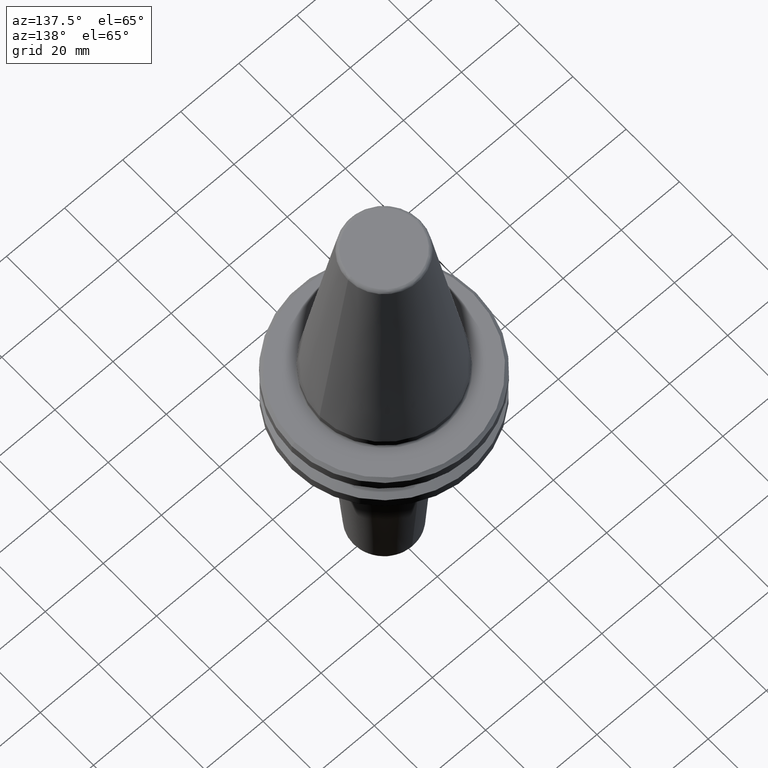
[diagram: clean part render]
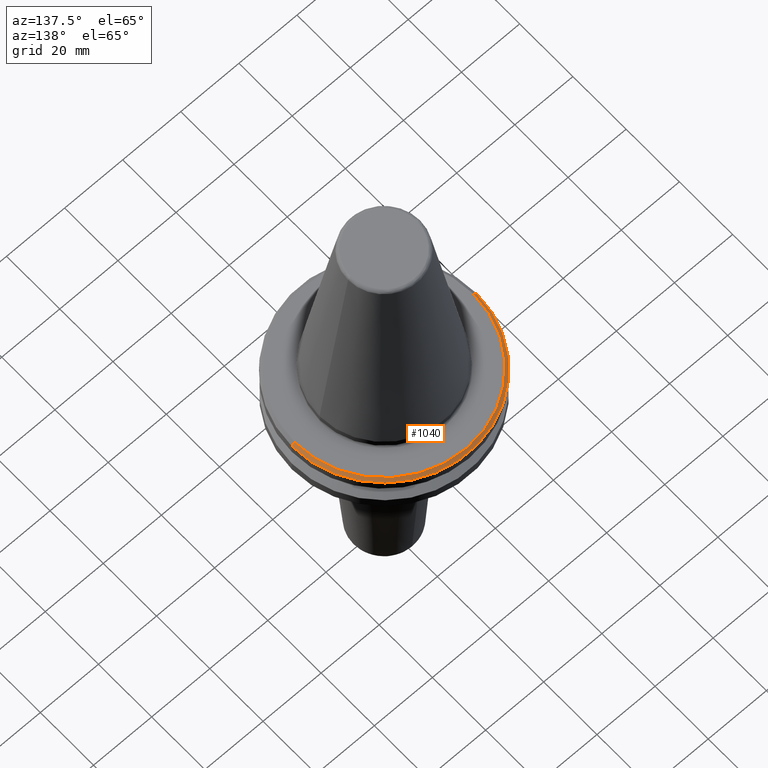
[diagram: same view with one face highlighted and labeled with its STEP entity id]
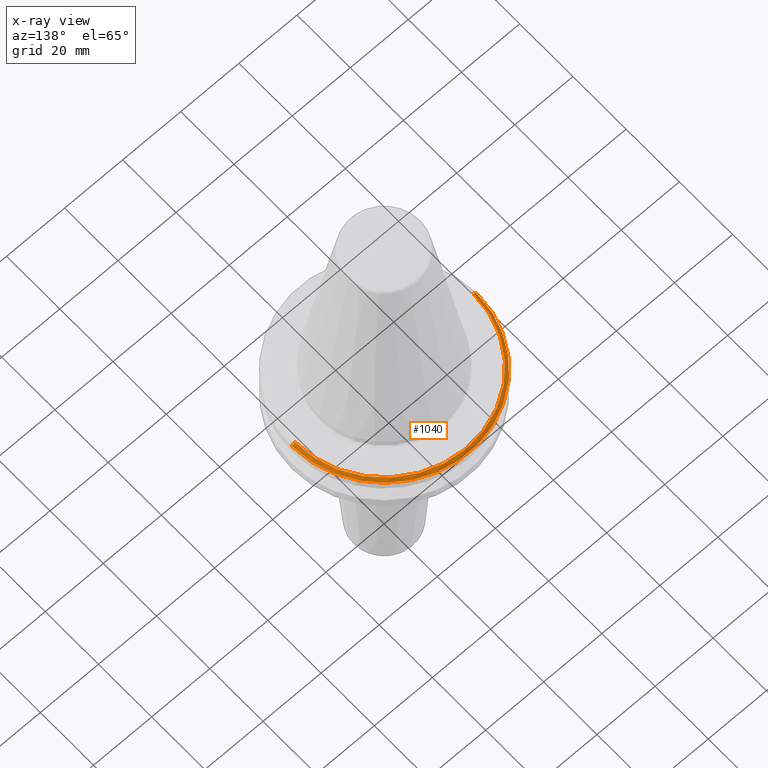
[diagram: x-ray of the same camera — body ghosted, the highlighted face saturated]
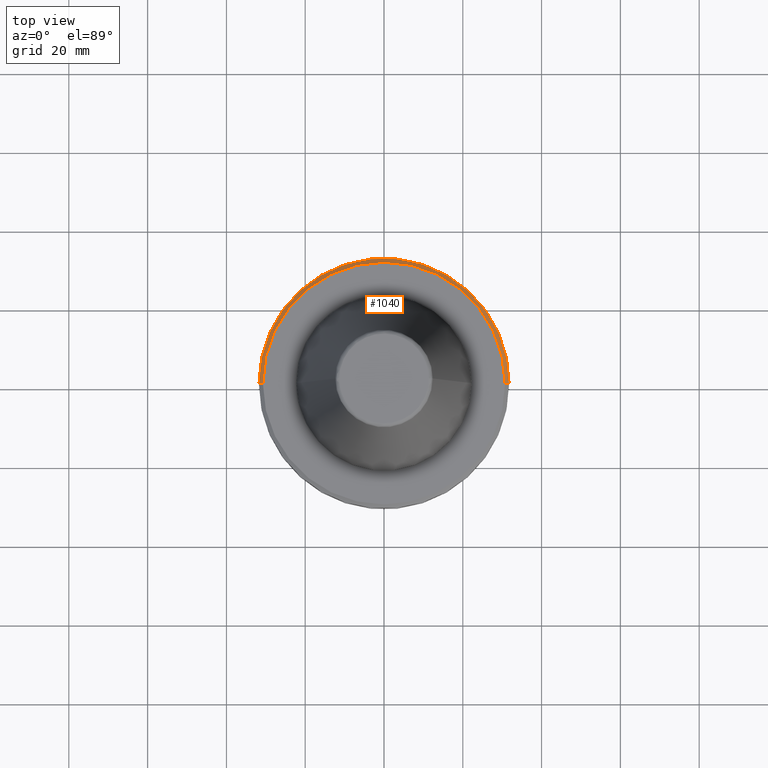
[diagram: same view with one face highlighted and labeled with its STEP entity id]
A machine part, auxiliary view. The second image highlights one B-rep face of the part: STEP entity #1040.
The next image is the same camera in x-ray: the body ghosted, the highlighted face saturated — about 0% of this face is hidden behind the body in this view.
A second angle (top view) of the same face is appended — the face is thin or edge-on in the first view.
In plain terms, the highlighted conical surface has half-angle 45 deg.
Its self-contained STEP definition (entity closure, byte-faithful):
#37 = EDGE_LOOP ( 'NONE', ( #419, #263, #518, #1354 ) ) ;
#111 = DIRECTION ( 'NONE',  ( 0.7071067811865438000, 8.659560562354888500E-017, -0.7071067811865513500 ) ) ;
#122 = CIRCLE ( 'NONE', #900, 30.74999999999994300 ) ;
#217 = DIRECTION ( 'NONE',  ( 0.0000000000000000000, -1.000000000000000000, -2.731847993664277400E-017 ) ) ;
#263 = ORIENTED_EDGE ( 'NONE', *, *, #1315, .T. ) ;
#278 = CARTESIAN_POINT ( 'NONE',  ( 0.0000000000000000000, 1.543446753655318200E-015, -4.199999999999926500 ) ) ;
#387 = CARTESIAN_POINT ( 'NONE',  ( 31.74999999999983300, 4.044452883213195300E-030, -4.199999999999926500 ) ) ;
#393 = DIRECTION ( 'NONE',  ( -0.0000000000000000000, -2.151315960516452700E-017, 1.000000000000000000 ) ) ;
#397 = VERTEX_POINT ( 'NONE', #387 ) ;
#401 = CIRCLE ( 'NONE', #497, 31.74999999999983300 ) ;
#419 = ORIENTED_EDGE ( 'NONE', *, *, #1524, .F. ) ;
#497 = AXIS2_PLACEMENT_3D ( 'NONE', #278, #393, #217 ) ;
#498 = CARTESIAN_POINT ( 'NONE',  ( -30.74999999999994300, 2.311115933264683000E-030, -3.200000000000036100 ) ) ;
#518 = ORIENTED_EDGE ( 'NONE', *, *, #1260, .T. ) ;
#530 = VECTOR ( 'NONE', #111, 1000.000000000000000 ) ;
#637 = FACE_OUTER_BOUND ( 'NONE', #37, .T. ) ;
#660 = LINE ( 'NONE', #1132, #749 ) ;
#749 = VECTOR ( 'NONE', #1128, 1000.000000000000000 ) ;
#779 = AXIS2_PLACEMENT_3D ( 'NONE', #978, #914, #957 ) ;
#900 = AXIS2_PLACEMENT_3D ( 'NONE', #1020, #1340, #981 ) ;
#914 = DIRECTION ( 'NONE',  ( 0.0000000000000000000, 0.0000000000000000000, -1.000000000000000000 ) ) ;
#932 = EDGE_CURVE ( 'NONE', #1387, #1400, #660, .T. ) ;
#957 = DIRECTION ( 'NONE',  ( -1.000000000000000000, 0.0000000000000000000, 0.0000000000000000000 ) ) ;
#978 = CARTESIAN_POINT ( 'NONE',  ( 0.0000000000000000000, 0.0000000000000000000, -4.082842712474625400 ) ) ;
#981 = DIRECTION ( 'NONE',  ( 0.0000000000000000000, -1.000000000000000000, -2.820688578824081800E-017 ) ) ;
#982 = VERTEX_POINT ( 'NONE', #1118 ) ;
#1020 = CARTESIAN_POINT ( 'NONE',  ( 0.0000000000000000000, 1.521933594050156300E-015, -3.200000000000036100 ) ) ;
#1040 = ADVANCED_FACE ( 'NONE', ( #637 ), #1312, .T. ) ;
#1118 = CARTESIAN_POINT ( 'NONE',  ( 30.74999999999994300, 3.827021247335473400E-015, -3.200000000000036100 ) ) ;
#1128 = DIRECTION ( 'NONE',  ( -0.7071067811865438000, 0.0000000000000000000, -0.7071067811865513500 ) ) ;
#1132 = CARTESIAN_POINT ( 'NONE',  ( -31.63284271247462300, 0.0000000000000000000, -4.082842712474625400 ) ) ;
#1152 = CARTESIAN_POINT ( 'NONE',  ( -31.74999999999983300, 3.888253587292840200E-015, -4.199999999999926500 ) ) ;
#1260 = EDGE_CURVE ( 'NONE', #397, #1400, #401, .T. ) ;
#1308 = LINE ( 'NONE', #1510, #530 ) ;
#1312 = CONICAL_SURFACE ( 'NONE', #779, 31.63284271247462300, 0.7853981633974429500 ) ;
#1315 = EDGE_CURVE ( 'NONE', #982, #397, #1308, .T. ) ;
#1340 = DIRECTION ( 'NONE',  ( -0.0000000000000000000, -2.151315960516452700E-017, 1.000000000000000000 ) ) ;
#1354 = ORIENTED_EDGE ( 'NONE', *, *, #932, .F. ) ;
#1387 = VERTEX_POINT ( 'NONE', #498 ) ;
#1400 = VERTEX_POINT ( 'NONE', #1152 ) ;
#1510 = CARTESIAN_POINT ( 'NONE',  ( 31.63284271247462300, 3.873905957576372200E-015, -4.082842712474625400 ) ) ;
#1524 = EDGE_CURVE ( 'NONE', #982, #1387, #122, .T. ) ;